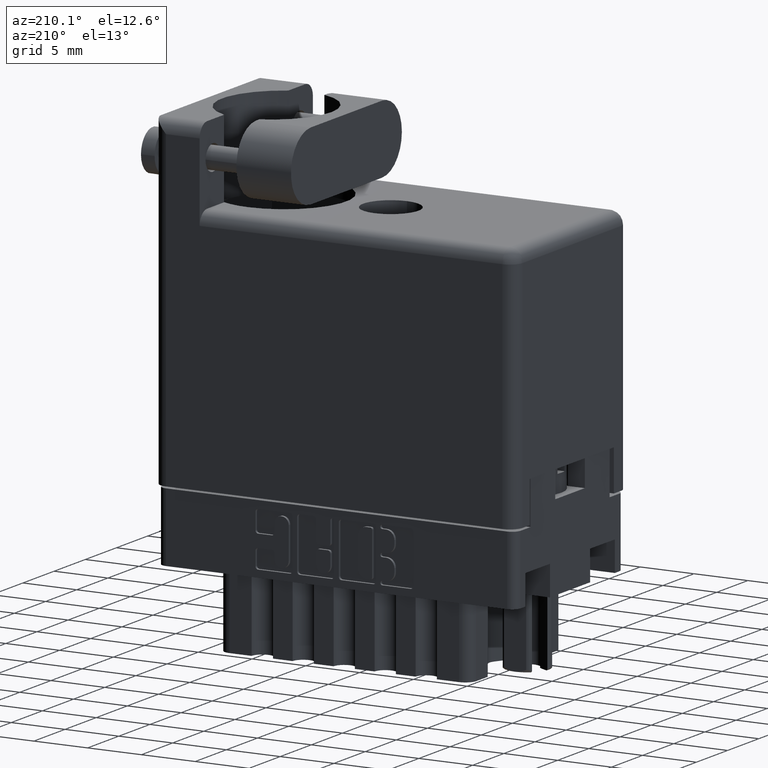
[diagram: clean part render]
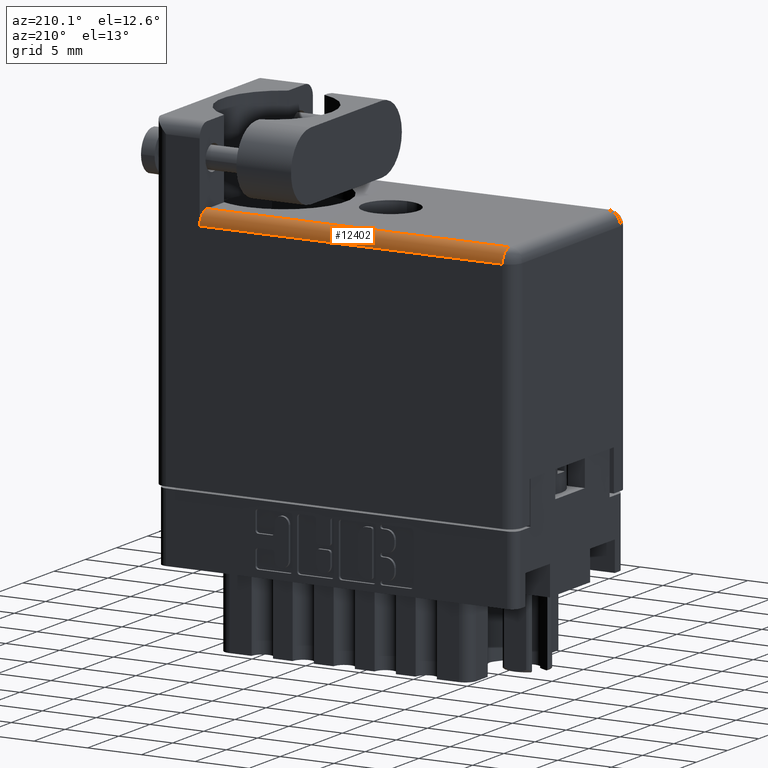
[diagram: same view with one face highlighted and labeled with its STEP entity id]
A machine part, auxiliary view. The second image highlights one B-rep face of the part: STEP entity #12402.
In plain terms, the highlighted cylindrical surface (edge-blend (fillet) strip) has radius 1.1938 mm, axis along (-1, 0, 0).
Its self-contained STEP definition (entity closure, byte-faithful):
#96 = DIRECTION ( 'NONE',  ( 0.0000000000000000000, 0.0000000000000000000, 1.000000000000000000 ) ) ;
#724 = CARTESIAN_POINT ( 'NONE',  ( 0.0000000000000000000, 0.8590000000000001000, -0.6680000000000000400 ) ) ;
#907 = AXIS2_PLACEMENT_3D ( 'NONE', #8135, #13808, #96 ) ;
#3365 = ORIENTED_EDGE ( 'NONE', *, *, #29426, .F. ) ;
#3922 = DIRECTION ( 'NONE',  ( 1.000000000000000000, 0.0000000000000000000, 0.0000000000000000000 ) ) ;
#4961 = EDGE_CURVE ( 'NONE', #11136, #17199, #33601, .T. ) ;
#7037 = VECTOR ( 'NONE', #25197, 39.37007874015748100 ) ;
#8135 = CARTESIAN_POINT ( 'NONE',  ( 0.04700000000000006900, 0.8590000000000001000, -0.6680000000000000400 ) ) ;
#9232 = CARTESIAN_POINT ( 'NONE',  ( 0.0000000000000000000, 0.9060000000000002500, -0.6680000000000000400 ) ) ;
#11136 = VERTEX_POINT ( 'NONE', #24975 ) ;
#12009 = DIRECTION ( 'NONE',  ( -1.000000000000000000, 0.0000000000000000000, 0.0000000000000000000 ) ) ;
#12402 = ADVANCED_FACE ( 'NONE', ( #22864 ), #32027, .T. ) ;
#13505 = VECTOR ( 'NONE', #12009, 39.37007874015748100 ) ;
#13808 = DIRECTION ( 'NONE',  ( -1.000000000000000000, 0.0000000000000000000, 0.0000000000000000000 ) ) ;
#14827 = LINE ( 'NONE', #33798, #7037 ) ;
#17199 = VERTEX_POINT ( 'NONE', #27776 ) ;
#18040 = EDGE_CURVE ( 'NONE', #17199, #25603, #14827, .T. ) ;
#18339 = AXIS2_PLACEMENT_3D ( 'NONE', #724, #22682, #25610 ) ;
#18992 = ORIENTED_EDGE ( 'NONE', *, *, #4961, .F. ) ;
#19738 = ORIENTED_EDGE ( 'NONE', *, *, #18040, .F. ) ;
#20915 = LINE ( 'NONE', #9232, #13505 ) ;
#22682 = DIRECTION ( 'NONE',  ( -1.000000000000000000, 0.0000000000000000000, 0.0000000000000000000 ) ) ;
#22864 = FACE_OUTER_BOUND ( 'NONE', #24016, .T. ) ;
#24016 = EDGE_LOOP ( 'NONE', ( #35078, #19738, #18992, #3365 ) ) ;
#24020 = CARTESIAN_POINT ( 'NONE',  ( 1.155000000000000000, 0.9060000000000002500, -0.6680000000000000400 ) ) ;
#24975 = CARTESIAN_POINT ( 'NONE',  ( 0.04700000000000006900, 0.9060000000000002500, -0.6680000000000000400 ) ) ;
#25197 = DIRECTION ( 'NONE',  ( 1.000000000000000000, -0.0000000000000000000, -0.0000000000000000000 ) ) ;
#25603 = VERTEX_POINT ( 'NONE', #30245 ) ;
#25610 = DIRECTION ( 'NONE',  ( 0.0000000000000000000, 0.0000000000000000000, 1.000000000000000000 ) ) ;
#27776 = CARTESIAN_POINT ( 'NONE',  ( 0.04700000000000006900, 0.8590000000000001000, -0.7150000000000001900 ) ) ;
#28767 = CARTESIAN_POINT ( 'NONE',  ( 1.155000000000000000, 0.8590000000000001000, -0.6680000000000000400 ) ) ;
#29426 = EDGE_CURVE ( 'NONE', #35368, #11136, #20915, .T. ) ;
#30245 = CARTESIAN_POINT ( 'NONE',  ( 1.155000000000000000, 0.8590000000000001000, -0.7150000000000001900 ) ) ;
#31578 = DIRECTION ( 'NONE',  ( 0.0000000000000000000, 0.0000000000000000000, -1.000000000000000000 ) ) ;
#32027 = CYLINDRICAL_SURFACE ( 'NONE', #18339, 0.04700000000000006900 ) ;
#32588 = AXIS2_PLACEMENT_3D ( 'NONE', #28767, #3922, #31578 ) ;
#32928 = EDGE_CURVE ( 'NONE', #25603, #35368, #35955, .T. ) ;
#33601 = CIRCLE ( 'NONE', #907, 0.04700000000000006900 ) ;
#33798 = CARTESIAN_POINT ( 'NONE',  ( 0.0000000000000000000, 0.8590000000000001000, -0.7150000000000001900 ) ) ;
#35078 = ORIENTED_EDGE ( 'NONE', *, *, #32928, .F. ) ;
#35368 = VERTEX_POINT ( 'NONE', #24020 ) ;
#35955 = CIRCLE ( 'NONE', #32588, 0.04700000000000006900 ) ;